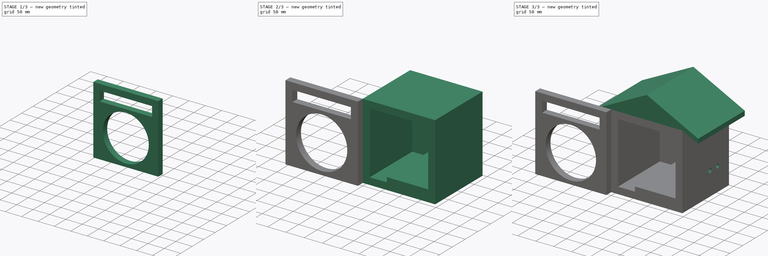
[diagram: build sequence overview — one tinted view per stage of 3, left to right]
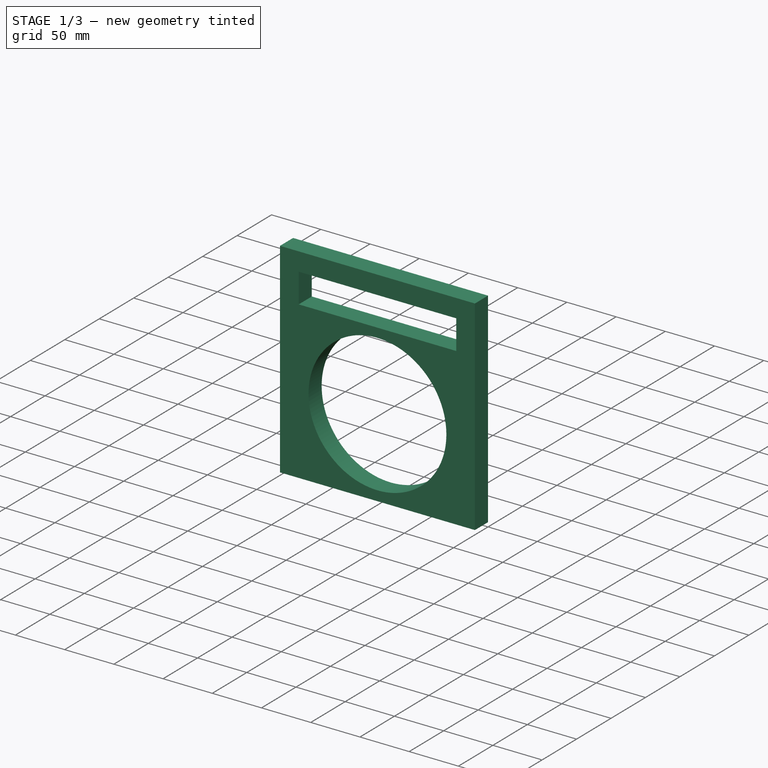
[diagram: stage 1 of 3 — iso view after this stage's code; geometry added in this stage tinted green]
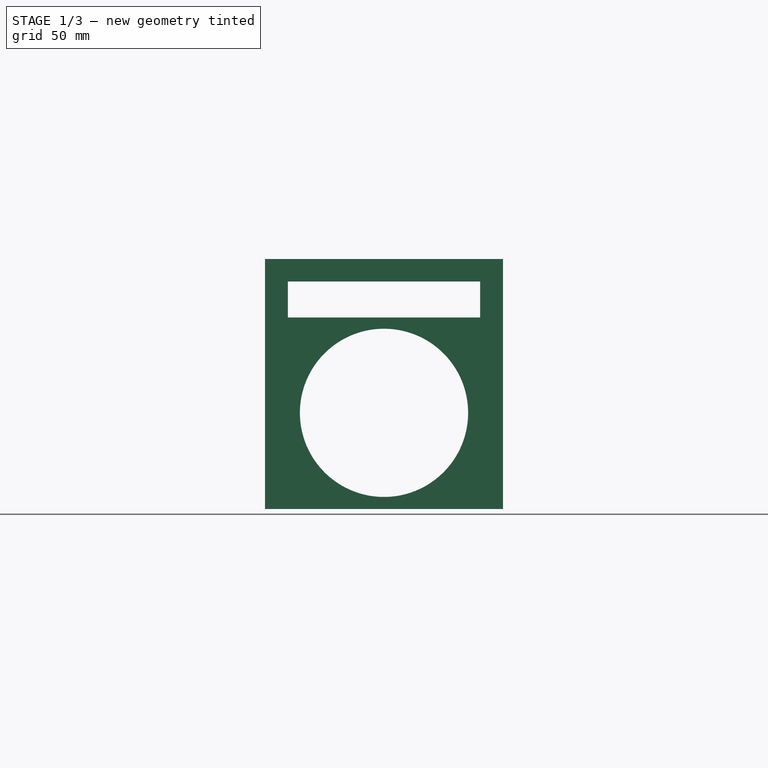
[diagram: stage 1 of 3 — front view after this stage's code; geometry added in this stage tinted green]
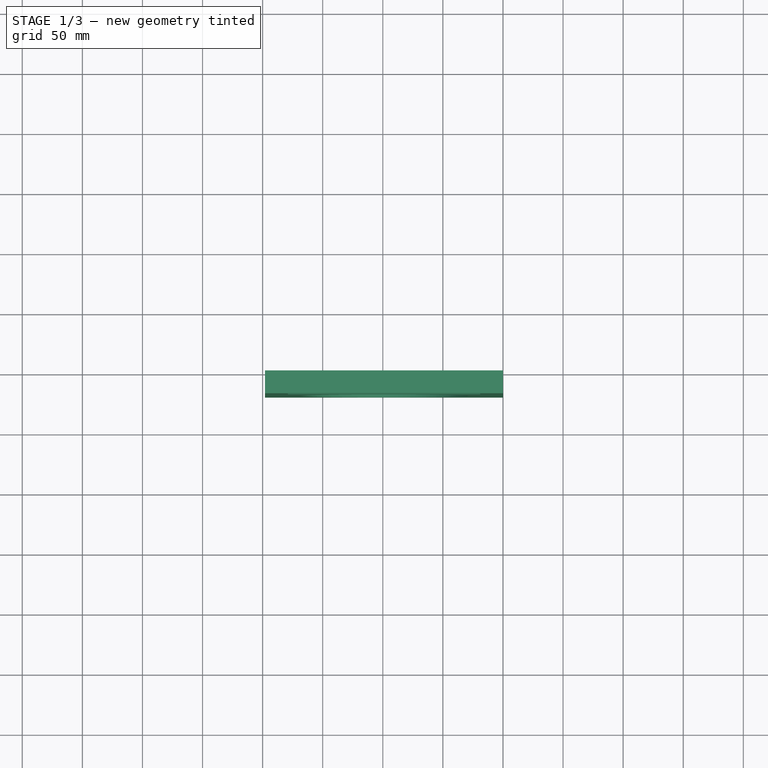
[diagram: stage 1 of 3 — top view after this stage's code; geometry added in this stage tinted green]
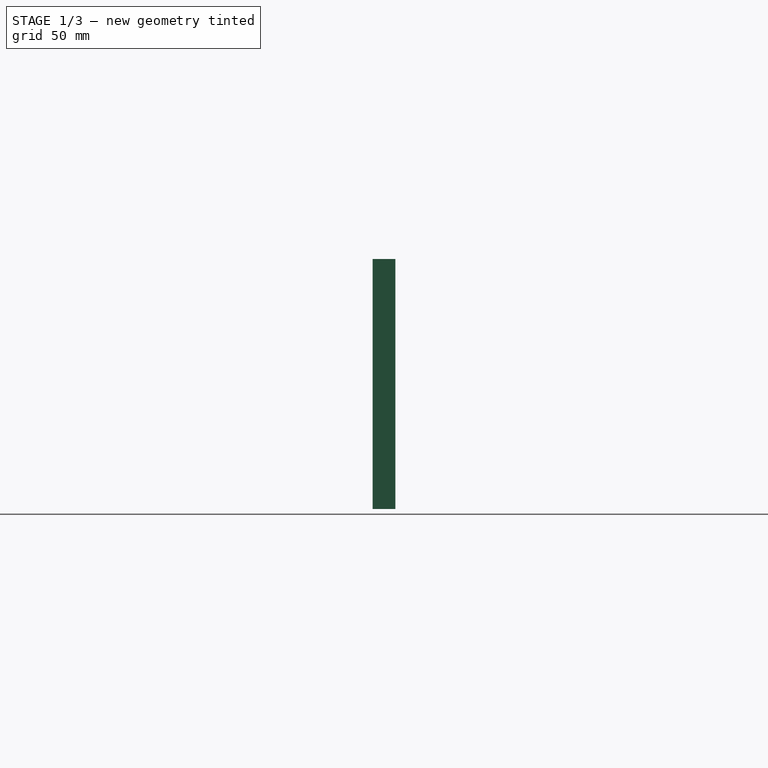
[diagram: stage 1 of 3 — right view after this stage's code; geometry added in this stage tinted green]
FCSTD DOCUMENT  (FreeCAD 0.16R6712 (Git))
Label: DSLR_Enclosure03
License: All rights reserved
LicenseURL: http://en.wikipedia.org/wiki/All_rights_reserved
objects: Drawing::FeatureViewPython×22, Drawing::FeatureViewPart×6, Sketcher::SketchObject×4, PartDesign::Pocket×3, Part::Box×2, PartDesign::Pad×1, Drawing::FeaturePage×1
note: 14 computed .brp shape members not serialized (recipe doc carries the construction recipe); baked Part::Feature solids carry a one-line shape summary decoded from their .brp

FEATURE [Sketcher::SketchObject] Sketch
  Placement = pos=(0,0,0) rot=(1,0,0;1.5708rad)
  Support = -> Box [Face3]
  sketch-geometry (6):
    g0: LineSegment StartX=19 StartY=19 StartZ=0 EndX=19 EndY=189 EndZ=0
    g1: LineSegment StartX=19 StartY=189 StartZ=0 EndX=179 EndY=189 EndZ=0
    g2: LineSegment StartX=66 StartY=32 StartZ=0 EndX=179 EndY=32 EndZ=0
    g3: LineSegment StartX=66 StartY=19 StartZ=0 EndX=66 EndY=32 EndZ=0
    g4: LineSegment StartX=19 StartY=19 StartZ=0 EndX=66 EndY=19 EndZ=0
    g5: LineSegment StartX=179 StartY=32 StartZ=0 EndX=179 EndY=189 EndZ=0
  constraints (18):
    c: Coincident(g0,g1)
    c: Horizontal(g1)
    c: Vertical(g0)
    c: Coincident(g3,g2)
    c: Horizontal(g2)
    c: Vertical(g3)
    c: Coincident(g4,g0)
    c: Horizontal(g4)
    c: Coincident(g5,g2)
    c: Coincident(g5,g1)
    c: Vertical(g5)
    c: DistanceY(g-1,g0) = 19
    c: DistanceY(g-1,g2) = 32
    c: DistanceX(g-1,g0) = 19
    c: DistanceX(g-1,g2) = 179
    c: Coincident(g3,g4)
    c: Distance(g4) = 47
    c: DistanceY(g-1,g0) = 189
FEATURE [Part::Box] Box001  label="Cube001"
  Height = 208
  Length = 198
  Placement = pos=(0,0,0) rot=(0,0,1;3.14159rad)
  Width = 19
FEATURE [PartDesign::Pocket] Pocket003
  Length = 19
  Placement = pos=(0,0,0) rot=(0,0,1;3.14159rad)
  Sketch = -> Sketch004
  Type = 0
FEATURE [Drawing::FeatureViewPart] Ortho  label="RightSide"
  Direction = (1,0,0)
  HiddenWidth = 0.15
  LineWidth = 0.35
  Rotation = -90
  Scale = 0.25
  ShowHiddenLines = false
  ShowSmoothLines = false
  Source = -> Pad
  Tolerance = 0.05
  ViewResult = <g id="RightSide"\n   transform="rotate(-90,150,150) translate(150,150) scale(0.25,0.25)"\n  >\n<g   stroke="rgb(0, 0, 0)"\n   stroke-width="1.4"\n   stroke-linecap="butt"\n   stroke-linejoin="miter"\n   fill="none"\n   transform="scale(1,-1)"\n  >\n<path id= "1" d=" M 0 0 L 0 -185 " />\n<path id= "2" d=" M 0 -185 L 186 -185 " />\n<path id= "3" d=" M 0 0 L 208 0 " />\n<circle cx ="65" cy ="-110.26" r ="6" /><circle cx ="65" cy ="-140.26" r ="6" /><path id= "6" d=" M 271 -185 L 199 -185 " />\n<path id= "7" d=" M 199 -185 L 186 -185 " />\n<path id= "8" d=" M 186 -4.13003e-014 L 186 -185 " />\n<path id= "9" d=" M 271 -6.01741e-014 L 199 -4.41869e-014 " />\n<path id= "10" d=" M 199 -4.41869e-014 L 186 -4.13003e-014 " />\n<path id= "11" d=" M 271 -6.01741e-014 L 271 -185 " />\n<path id= "12" d=" M 199 -4.41869e-014 L 199 -185 " />\n</g>\n</g>
  Visible = true
  X = 150
  Y = 150
FEATURE [Drawing::FeatureViewPart] Ortho001  label="TopView"
  Direction = (0,0,1)
  HiddenWidth = 0.15
  LineWidth = 0.35
  Rotation = 90
  Scale = 0.25
  ShowHiddenLines = false
  ShowSmoothLines = false
  Source = -> Pad
  Tolerance = 0.05
  ViewResult = <g id="Ortho_0_1"\n   transform="rotate(90,50,120) translate(50,120) scale(0.25,0.25)"\n  >\n<g   stroke="rgb(0, 0, 0)"\n   stroke-width="1.4"\n   stroke-linecap="butt"\n   stroke-linejoin="miter"\n   fill="none"\n   transform="scale(1,-1)"\n  >\n<path id= "1" d=" M 19 4.21885e-015 L 66 4.21885e-015 " />\n<path id= "2" d=" M 66 7.10543e-015 L 179 7.10543e-015 " />\n<path id= "3" d=" M -43.8846 185 L 99 185 " />\n<path id= "4" d=" M 99 185 L 241.885 185 " />\n<path id= "5" d=" M -43.8846 4.41869e-014 L 99 6.01741e-014 " />\n<path id= "6" d=" M 99 6.01741e-014 L 241.885 4.41869e-014 " />\n<path id= "7" d=" M -43.8846 4.41869e-014 L -43.8846 185 " />\n<path id= "8" d=" M 99 6.01741e-014 L 99 185 " />\n<path id= "9" d=" M 241.885 4.41869e-014 L 241.885 185 " />\n</g>\n</g>
  Visible = true
  X = 50
  Y = 120
FEATURE [Drawing::FeatureViewPart] Ortho002  label="3DView"
  Direction = (0.57735,-0.57735,0.57735)
  HiddenWidth = 0.15
  LineWidth = 0.35
  Rotation = 60
  Scale = 0.15
  ShowHiddenLines = false
  ShowSmoothLines = false
  Source = -> Pad
  Tolerance = 0.05
  ViewResult = <blob: 2220 chars omitted>
  Visible = true
  X = 230
  Y = 50
FEATURE [Drawing::FeatureViewPart] Ortho003  label="FrontView"
  Direction = (0,-1,0)
  HiddenWidth = 0.15
  LineWidth = 0.35
  Rotation = 90
  Scale = 0.25
  ShowHiddenLines = false
  ShowSmoothLines = false
  Source = -> Pad
  Tolerance = 0.05
  ViewResult = <g id="FrontView"\n   transform="rotate(90,50,80) translate(50,80) scale(0.25,0.25)"\n  >\n<g   stroke="rgb(0, 0, 0)"\n   stroke-width="1.4"\n   stroke-linecap="butt"\n   stroke-linejoin="miter"\n   fill="none"\n   transform="scale(1,-1)"\n  >\n<path id= "1" d=" M 0 0 L 0 198 " />\n<path id= "2" d=" M 0 0 L -208 0 " />\n<path id= "3" d=" M 0 198 L -208 198 " />\n<path id= "4" d=" M -208 0 L -208 198 " />\n<path id= "5" d=" M -19 19 L -189 19 " />\n<path id= "6" d=" M -19 19 L -19 66 " />\n<path id= "7" d=" M -189 19 L -189 179 " />\n<path id= "8" d=" M -19 66 L -32 66 " />\n<path id= "9" d=" M -32 179 L -189 179 " />\n<path id= "10" d=" M -32 66 L -32 179 " />\n<path id= "11" d=" M -186 -43.8846 L -208 3.55271e-014 " />\n<path id= "12" d=" M -208 198 L -186 241.885 " />\n<path id= "13" d=" M -186 -43.8846 L -199 -43.8846 " />\n<path id= "14" d=" M -199 -43.8846 L -271 99 " />\n<path id= "15" d=" M -271 99 L -199 241.885 " />\n<path id= "16" d=" M -199 241.885 L -186 241.885 " />\n<path id= "17" d=" M -189 19 L -189 179 " />\n</g>\n</g>
  Visible = true
  X = 50
  Y = 80
FEATURE [Drawing::FeatureViewPart] Ortho004  label="BackView"
  Direction = (0,1,0)
  HiddenWidth = 0.15
  LineWidth = 0.35
  Rotation = -90
  Scale = 0.25
  ShowHiddenLines = false
  ShowSmoothLines = false
  Source = -> Pad
  Tolerance = 0.05
  ViewResult = <g id="BackView"\n   transform="rotate(-90,270,150) translate(270,150) scale(0.25,0.25)"\n  >\n<g   stroke="rgb(0, 0, 0)"\n   stroke-width="1.4"\n   stroke-linecap="butt"\n   stroke-linejoin="miter"\n   fill="none"\n   transform="scale(1,-1)"\n  >\n<path id= "1" d=" M 0 0 L 0 198 " />\n<path id= "2" d=" M 0 0 L 208 0 " />\n<path id= "3" d=" M 0 198 L 208 198 " />\n<path id= "4" d=" M 208 0 L 208 198 " />\n<path id= "5" d=" M 186 -43.8846 L 208 3.55271e-014 " />\n<path id= "6" d=" M 186 -43.8846 L 199 -43.8846 " />\n<path id= "7" d=" M 199 -43.8846 L 271 99 " />\n<path id= "8" d=" M 208 198 L 186 241.885 " />\n<path id= "9" d=" M 271 99 L 199 241.885 " />\n<path id= "10" d=" M 199 241.885 L 186 241.885 " />\n</g>\n</g>
  Visible = true
  X = 270
  Y = 150
FEATURE [Drawing::FeatureViewPython] dim001  # drawing view (typed FeaturePython)
  Rotation = 0
  ViewResult = <g> \n  <line x1="50.000000" y1="82.000000" x2="50.000000" y2="91.000000" style="stroke:rgb(0,0,255);stroke-width:0.50" />\n<line x1="99.500000" y1="82.000000" x2="99.500000" y2="91.000000" style="stroke:rgb(0,0,255);stroke-width:0.50" />\n<line x1="50.000000" y1="90.000000" x2="99.500000" y2="90.000000" style="stroke:rgb(0,0,255);stroke-width:0.50" /> \n  <polygon points="99.500000,90.000000 96.500000,89.000000 95.500000,90.000000 96.500000,91.000000" style="fill:rgb(0,0,255);stroke:rgb(0,0,255);stroke-width:0" /><polygon points="50.000000,90.000000 53.000000,91.000000 54.000000,90.000000 53.000000,89.000000" style="fill:rgb(0,0,255);stroke:rgb(0,0,255);stroke-width:0" /> \n  <text x="74.750000" y="88.000000" font-family="inherit" font-size="3.6" fill="rgb(0,0,255)" text-anchor="middle" transform="rotate(0.000000 74.750000,88.000000)" >198</text> </g>
  Visible = true
  X = 0
  Y = 0
  arrowL1 = 3
  arrowL2 = 1
  arrowW = 2
  arrow_scheme = 0
  autoPlaceOffset = 2
  autoPlaceText = true
  click1_x = 95
  click1_y = 90
  click2_x = 95
  click2_y = 90
  comma_decimal_place = false
  dimension_line_overshoot = 1
  gap_datum_points = 2
  halfDimension_linear = false
  lineColor = rgb(0,0,255)
  strokeWidth = 0.5
  textFormat_linear = %(value)3.3f
  textRenderer_color = rgb(0,0,255)
  textRenderer_family = inherit
  textRenderer_size = 3.6
  unit_custom_scale = 1
  unit_scheme = 0
FEATURE [Drawing::FeatureViewPython] dim002  # drawing view (typed FeaturePython)
  Rotation = 0
  ViewResult = <g> \n  <line x1="101.500000" y1="28.000000" x2="121.000000" y2="28.000000" style="stroke:rgb(0,0,255);stroke-width:0.50" />\n<line x1="101.500000" y1="80.000000" x2="121.000000" y2="80.000000" style="stroke:rgb(0,0,255);stroke-width:0.50" />\n<line x1="120.000000" y1="28.000000" x2="120.000000" y2="80.000000" style="stroke:rgb(0,0,255);stroke-width:0.50" /> \n  <polygon points="120.000000,80.000000 121.000000,77.000000 120.000000,76.000000 119.000000,77.000000" style="fill:rgb(0,0,255);stroke:rgb(0,0,255);stroke-width:0" /><polygon points="120.000000,28.000000 119.000000,31.000000 120.000000,32.000000 121.000000,31.000000" style="fill:rgb(0,0,255);stroke:rgb(0,0,255);stroke-width:0" /> \n  <text x="118.000000" y="54.000000" font-family="inherit" font-size="3.6" fill="rgb(0,0,255)" text-anchor="middle" transform="rotate(-90.000000 118.000000,54.000000)" >208</text> </g>
  Visible = true
  X = 0
  Y = 0
  arrowL1 = 3
  arrowL2 = 1
  arrowW = 2
  arrow_scheme = 0
  autoPlaceOffset = 2
  autoPlaceText = true
  click1_x = 120
  click1_y = 75
  click2_x = 120
  click2_y = 75
  comma_decimal_place = false
  dimension_line_overshoot = 1
  gap_datum_points = 2
  halfDimension_linear = false
  lineColor = rgb(0,0,255)
  strokeWidth = 0.5
  textFormat_linear = %(value)3.3f
  textRenderer_color = rgb(0,0,255)
  textRenderer_family = inherit
  textRenderer_size = 3.6
  unit_custom_scale = 1
  unit_scheme = 0
FEATURE [Drawing::FeatureViewPython] dim005  # drawing view (typed FeaturePython)
  Rotation = 0
  ViewResult = <g> \n  <line x1="54.750000" y1="34.750000" x2="54.750000" y2="41.000000" style="stroke:rgb(0,0,255);stroke-width:0.50" />\n<line x1="94.750000" y1="34.750000" x2="94.750000" y2="41.000000" style="stroke:rgb(0,0,255);stroke-width:0.50" />\n<line x1="54.750000" y1="40.000000" x2="94.750000" y2="40.000000" style="stroke:rgb(0,0,255);stroke-width:0.50" /> \n  <polygon points="94.750000,40.000000 91.750000,39.000000 90.750000,40.000000 91.750000,41.000000" style="fill:rgb(0,0,255);stroke:rgb(0,0,255);stroke-width:0" /><polygon points="54.750000,40.000000 57.750000,41.000000 58.750000,40.000000 57.750000,39.000000" style="fill:rgb(0,0,255);stroke:rgb(0,0,255);stroke-width:0" /> \n  <text x="74.750000" y="38.000000" font-family="inherit" font-size="3.6" fill="rgb(0,0,255)" text-anchor="middle" transform="rotate(0.000000 74.750000,38.000000)" >160</text> </g>
  Visible = true
  X = 0
  Y = 0
  arrowL1 = 3
  arrowL2 = 1
  arrowW = 2
  arrow_scheme = 0
  autoPlaceOffset = 2
  autoPlaceText = true
  click1_x = 90
  click1_y = 40
  click2_x = 90
  click2_y = 40
  comma_decimal_place = false
  dimension_line_overshoot = 1
  gap_datum_points = 2
  halfDimension_linear = false
  lineColor = rgb(0,0,255)
  strokeWidth = 0.5
  textFormat_linear = %(value)3.3f
  textRenderer_color = rgb(0,0,255)
  textRenderer_family = inherit
  textRenderer_size = 3.6
  unit_custom_scale = 1
  unit_scheme = 0
FEATURE [Drawing::FeatureViewPython] dim006  # drawing view (typed FeaturePython)
  Rotation = 0
  ViewResult = <g> \n  <line x1="48.000000" y1="109.028850" x2="29.000000" y2="109.028850" style="stroke:rgb(0,0,255);stroke-width:0.50" />\n<line x1="48.000000" y1="180.471250" x2="29.000000" y2="180.471250" style="stroke:rgb(0,0,255);stroke-width:0.50" />\n<line x1="30.000000" y1="109.028850" x2="30.000000" y2="180.471250" style="stroke:rgb(0,0,255);stroke-width:0.50" /> \n  <polygon points="30.000000,180.471250 31.000000,177.471250 30.000000,176.471250 29.000000,177.471250" style="fill:rgb(0,0,255);stroke:rgb(0,0,255);stroke-width:0" /><polygon points="30.000000,109.028850 29.000000,112.028850 30.000000,113.028850 31.000000,112.028850" style="fill:rgb(0,0,255);stroke:rgb(0,0,255);stroke-width:0" /> \n  <text x="28.000000" y="144.750050" font-family="inherit" font-size="3.6" fill="rgb(0,0,255)" text-anchor="middle" transform="rotate(-90.000000 28.000000,144.750050)" >285.77</text> </g>
  Visible = true
  X = 0
  Y = 0
  arrowL1 = 3
  arrowL2 = 1
  arrowW = 2
  arrow_scheme = 0
  autoPlaceOffset = 2
  autoPlaceText = true
  click1_x = 30
  click1_y = 175
  click2_x = 30
  click2_y = 175
  comma_decimal_place = false
  dimension_line_overshoot = 1
  gap_datum_points = 2
  halfDimension_linear = false
  lineColor = rgb(0,0,255)
  strokeWidth = 0.5
  textFormat_linear = %(value)3.3f
  textRenderer_color = rgb(0,0,255)
  textRenderer_family = inherit
  textRenderer_size = 3.6
  unit_custom_scale = 1
  unit_scheme = 0
FEATURE [Drawing::FeatureViewPython] dim007  # drawing view (typed FeaturePython)
  Rotation = 0
  ViewResult = <g> \n  <line x1="48.000000" y1="124.750000" x2="39.000000" y2="124.750000" style="stroke:rgb(0,0,255);stroke-width:0.50" />\n<line x1="48.000000" y1="164.750000" x2="39.000000" y2="164.750000" style="stroke:rgb(0,0,255);stroke-width:0.50" />\n<line x1="40.000000" y1="124.750000" x2="40.000000" y2="164.750000" style="stroke:rgb(0,0,255);stroke-width:0.50" /> \n  <polygon points="40.000000,164.750000 41.000000,161.750000 40.000000,160.750000 39.000000,161.750000" style="fill:rgb(0,0,255);stroke:rgb(0,0,255);stroke-width:0" /><polygon points="40.000000,124.750000 39.000000,127.750000 40.000000,128.750000 41.000000,127.750000" style="fill:rgb(0,0,255);stroke:rgb(0,0,255);stroke-width:0" /> \n  <text x="38.000000" y="144.750000" font-family="inherit" font-size="3.6" fill="rgb(0,0,255)" text-anchor="middle" transform="rotate(-90.000000 38.000000,144.750000)" >160</text> </g>
  Visible = true
  X = 0
  Y = 0
  arrowL1 = 3
  arrowL2 = 1
  arrowW = 2
  arrow_scheme = 0
  autoPlaceOffset = 2
  autoPlaceText = true
  click1_x = 40
  click1_y = 165
  click2_x = 40
  click2_y = 165
  comma_decimal_place = false
  dimension_line_overshoot = 1
  gap_datum_points = 2
  halfDimension_linear = false
  lineColor = rgb(0,0,255)
  strokeWidth = 0.5
  textFormat_linear = %(value)3.3f
  textRenderer_color = rgb(0,0,255)
  textRenderer_family = inherit
  textRenderer_size = 3.6
  unit_custom_scale = 1
  unit_scheme = 0
FEATURE [Drawing::FeatureViewPython] dim008  # drawing view (typed FeaturePython)
  Rotation = 0
  ViewResult = <g> \n  <line x1="50.000000" y1="107.028850" x2="50.000000" y2="99.000000" style="stroke:rgb(0,0,255);stroke-width:0.50" />\n<line x1="96.250000" y1="107.028850" x2="96.250000" y2="99.000000" style="stroke:rgb(0,0,255);stroke-width:0.50" />\n<line x1="50.000000" y1="100.000000" x2="96.250000" y2="100.000000" style="stroke:rgb(0,0,255);stroke-width:0.50" /> \n  <polygon points="96.250000,100.000000 93.250000,99.000000 92.250000,100.000000 93.250000,101.000000" style="fill:rgb(0,0,255);stroke:rgb(0,0,255);stroke-width:0" /><polygon points="50.000000,100.000000 53.000000,101.000000 54.000000,100.000000 53.000000,99.000000" style="fill:rgb(0,0,255);stroke:rgb(0,0,255);stroke-width:0" /> \n  <text x="73.125000" y="98.000000" font-family="inherit" font-size="3.6" fill="rgb(0,0,255)" text-anchor="middle" transform="rotate(0.000000 73.125000,98.000000)" >185</text> </g>
  Visible = true
  X = 0
  Y = 0
  arrowL1 = 3
  arrowL2 = 1
  arrowW = 2
  arrow_scheme = 0
  autoPlaceOffset = 2
  autoPlaceText = true
  click1_x = 90
  click1_y = 100
  click2_x = 90
  click2_y = 100
  comma_decimal_place = false
  dimension_line_overshoot = 1
  gap_datum_points = 2
  halfDimension_linear = false
  lineColor = rgb(0,0,255)
  strokeWidth = 0.5
  textFormat_linear = %(value)3.3f
  textRenderer_color = rgb(0,0,255)
  textRenderer_family = inherit
  textRenderer_size = 3.6
  unit_custom_scale = 1
  unit_scheme = 0
FEATURE [Drawing::FeatureViewPython] dim009  # drawing view (typed FeaturePython)
  Rotation = 0
  ViewResult = <g> \n  <line x1="50.000000" y1="182.471250" x2="50.000000" y2="191.000000" style="stroke:rgb(0,0,255);stroke-width:0.50" />\n<line x1="96.250000" y1="182.471250" x2="96.250000" y2="191.000000" style="stroke:rgb(0,0,255);stroke-width:0.50" />\n<line x1="50.000000" y1="190.000000" x2="96.250000" y2="190.000000" style="stroke:rgb(0,0,255);stroke-width:0.50" /> \n  <polygon points="96.250000,190.000000 93.250000,189.000000 92.250000,190.000000 93.250000,191.000000" style="fill:rgb(0,0,255);stroke:rgb(0,0,255);stroke-width:0" /><polygon points="50.000000,190.000000 53.000000,191.000000 54.000000,190.000000 53.000000,189.000000" style="fill:rgb(0,0,255);stroke:rgb(0,0,255);stroke-width:0" /> \n  <text x="73.125000" y="188.000000" font-family="inherit" font-size="3.6" fill="rgb(0,0,255)" text-anchor="middle" transform="rotate(0.000000 73.125000,188.000000)" >185</text> </g>
  Visible = true
  X = 0
  Y = 0
  arrowL1 = 3
  arrowL2 = 1
  arrowW = 2
  arrow_scheme = 0
  autoPlaceOffset = 2
  autoPlaceText = true
  click1_x = 95
  click1_y = 190
  click2_x = 95
  click2_y = 190
  comma_decimal_place = false
  dimension_line_overshoot = 1
  gap_datum_points = 2
  halfDimension_linear = false
  lineColor = rgb(0,0,255)
  strokeWidth = 0.5
  textFormat_linear = %(value)3.3f
  textRenderer_color = rgb(0,0,255)
  textRenderer_family = inherit
  textRenderer_size = 3.6
  unit_custom_scale = 1
  unit_scheme = 0
FEATURE [Drawing::FeatureViewPython] dim010  # drawing view (typed FeaturePython)
  Rotation = 0
  ViewResult = <g> \n  <line x1="148.000000" y1="103.500000" x2="139.000000" y2="103.500000" style="stroke:rgb(0,0,255);stroke-width:0.50" />\n<line x1="148.000000" y1="150.000000" x2="139.000000" y2="150.000000" style="stroke:rgb(0,0,255);stroke-width:0.50" />\n<line x1="140.000000" y1="103.500000" x2="140.000000" y2="150.000000" style="stroke:rgb(0,0,255);stroke-width:0.50" /> \n  <polygon points="140.000000,150.000000 141.000000,147.000000 140.000000,146.000000 139.000000,147.000000" style="fill:rgb(0,0,255);stroke:rgb(0,0,255);stroke-width:0" /><polygon points="140.000000,103.500000 139.000000,106.500000 140.000000,107.500000 141.000000,106.500000" style="fill:rgb(0,0,255);stroke:rgb(0,0,255);stroke-width:0" /> \n  <text x="138.000000" y="126.750000" font-family="inherit" font-size="3.6" fill="rgb(0,0,255)" text-anchor="middle" transform="rotate(-90.000000 138.000000,126.750000)" >186</text> </g>
  Visible = true
  X = 0
  Y = 0
  arrowL1 = 3
  arrowL2 = 1
  arrowW = 2
  arrow_scheme = 0
  autoPlaceOffset = 2
  autoPlaceText = true
  click1_x = 140
  click1_y = 150
  click2_x = 140
  click2_y = 150
  comma_decimal_place = false
  dimension_line_overshoot = 1
  gap_datum_points = 2
  halfDimension_linear = false
  lineColor = rgb(0,0,255)
  strokeWidth = 0.5
  textFormat_linear = %(value)3.3f
  textRenderer_color = rgb(0,0,255)
  textRenderer_family = inherit
  textRenderer_size = 3.6
  unit_custom_scale = 1
  unit_scheme = 0
FEATURE [Drawing::FeatureViewPython] dim011  # drawing view (typed FeaturePython)
  Rotation = 0
  ViewResult = <g> \n  <line x1="148.000000" y1="100.250000" x2="134.000000" y2="100.250000" style="stroke:rgb(0,0,255);stroke-width:0.50" />\n<line x1="148.000000" y1="103.500000" x2="134.000000" y2="103.500000" style="stroke:rgb(0,0,255);stroke-width:0.50" />\n<line x1="135.000000" y1="100.250000" x2="135.000000" y2="103.500000" style="stroke:rgb(0,0,255);stroke-width:0.50" /> \n  <polygon points="135.000000,103.500000 134.000000,106.500000 135.000000,107.500000 136.000000,106.500000" style="fill:rgb(0,0,255);stroke:rgb(0,0,255);stroke-width:0" /><polygon points="135.000000,100.250000 136.000000,97.250000 135.000000,96.250000 134.000000,97.250000" style="fill:rgb(0,0,255);stroke:rgb(0,0,255);stroke-width:0" /> \n  <text x="133.000000" y="101.875000" font-family="inherit" font-size="3.6" fill="rgb(0,0,255)" text-anchor="middle" transform="rotate(-90.000000 133.000000,101.875000)" >13</text> </g>
  Visible = true
  X = 0
  Y = 0
  arrowL1 = 3
  arrowL2 = 1
  arrowW = 2
  arrow_scheme = 0
  autoPlaceOffset = 2
  autoPlaceText = true
  click1_x = 135
  click1_y = 100
  click2_x = 135
  click2_y = 100
  comma_decimal_place = false
  dimension_line_overshoot = 1
  gap_datum_points = 2
  halfDimension_linear = false
  lineColor = rgb(0,0,255)
  strokeWidth = 0.5
  textFormat_linear = %(value)3.3f
  textRenderer_color = rgb(0,0,255)
  textRenderer_family = inherit
  textRenderer_size = 3.6
  unit_custom_scale = 1
  unit_scheme = 0
FEATURE [Drawing::FeatureViewPython] dim012  # drawing view (typed FeaturePython)
  Rotation = 0
  ViewResult = <g> \n  <line x1="148.000000" y1="98.000000" x2="124.000000" y2="98.000000" style="stroke:rgb(0,0,255);stroke-width:0.50" />\n<line x1="148.000000" y1="150.000000" x2="124.000000" y2="150.000000" style="stroke:rgb(0,0,255);stroke-width:0.50" />\n<line x1="125.000000" y1="98.000000" x2="125.000000" y2="150.000000" style="stroke:rgb(0,0,255);stroke-width:0.50" /> \n  <polygon points="125.000000,150.000000 126.000000,147.000000 125.000000,146.000000 124.000000,147.000000" style="fill:rgb(0,0,255);stroke:rgb(0,0,255);stroke-width:0" /><polygon points="125.000000,98.000000 124.000000,101.000000 125.000000,102.000000 126.000000,101.000000" style="fill:rgb(0,0,255);stroke:rgb(0,0,255);stroke-width:0" /> \n  <text x="123.000000" y="124.000000" font-family="inherit" font-size="3.6" fill="rgb(0,0,255)" text-anchor="middle" transform="rotate(-90.000000 123.000000,124.000000)" >208</text> </g>
  Visible = true
  X = 0
  Y = 0
  arrowL1 = 3
  arrowL2 = 1
  arrowW = 2
  arrow_scheme = 0
  autoPlaceOffset = 2
  autoPlaceText = true
  click1_x = 125
  click1_y = 150
  click2_x = 125
  click2_y = 150
  comma_decimal_place = false
  dimension_line_overshoot = 1
  gap_datum_points = 2
  halfDimension_linear = false
  lineColor = rgb(0,0,255)
  strokeWidth = 0.5
  textFormat_linear = %(value)3.3f
  textRenderer_color = rgb(0,0,255)
  textRenderer_family = inherit
  textRenderer_size = 3.6
  unit_custom_scale = 1
  unit_scheme = 0
FEATURE [Drawing::FeatureViewPython] rad001  # drawing view (typed FeaturePython)
  Rotation = 0
  ViewResult = <g>  <circle cx ="177.565000" cy ="133.750000" r="0.250000" stroke="none" fill="rgb(0,0,255)" /> \n<line x1="170.000000" y1="140.000000" x2="177.565000" y2="133.750000" style="stroke:rgb(0,0,255);stroke-width:0.50" />\n<polygon points="176.408606,134.705381 173.458898,135.845215 173.324890,137.253065 174.732740,137.387073" style="fill:rgb(0,0,255);stroke:rgb(0,0,255);stroke-width:0" />\n<line x1="170.000000" y1="140.000000" x2="165.000000" y2="140.000000" style="stroke:rgb(0,0,255);stroke-width:0.50" />\n<text x="167.500000" y="138.000000" font-family="inherit" font-size="3.6" fill="rgb(0,0,255)" text-anchor="middle" transform="rotate(0.000000 167.500000,138.000000)" >R6</text> </g>
  Visible = true
  X = 0
  Y = 0
  arrowL1 = 3
  arrowL2 = 1
  arrowW = 2
  arrow_scheme = 0
  autoPlaceOffset = 2
  autoPlaceText = true
  centerPointDia = 0.5
  click1_x = 170
  click1_y = 140
  click2_x = 165
  click2_y = 135
  click3_x = 165
  click3_y = 135
  comma_decimal_place = false
  lineColor = rgb(0,0,255)
  strokeWidth = 0.5
  textFormat_radial = R%(value)3.3f
  textRenderer_color = rgb(0,0,255)
  textRenderer_family = inherit
  textRenderer_size = 3.6
  unit_custom_scale = 1
  unit_scheme = 0
FEATURE [Drawing::FeatureViewPython] rad002  # drawing view (typed FeaturePython)
  Rotation = 0
  ViewResult = <g>  <circle cx ="185.065000" cy ="133.750000" r="0.250000" stroke="none" fill="rgb(0,0,255)" /> \n<line x1="180.000000" y1="140.000000" x2="185.065000" y2="133.750000" style="stroke:rgb(0,0,255);stroke-width:0.50" />\n<polygon points="184.120586,134.915368 181.454846,136.616494 181.602148,138.023015 183.008670,137.875713" style="fill:rgb(0,0,255);stroke:rgb(0,0,255);stroke-width:0" />\n<line x1="180.000000" y1="140.000000" x2="175.000000" y2="140.000000" style="stroke:rgb(0,0,255);stroke-width:0.50" />\n<text x="177.500000" y="138.000000" font-family="inherit" font-size="3.6" fill="rgb(0,0,255)" text-anchor="middle" transform="rotate(0.000000 177.500000,138.000000)" >R6</text> </g>
  Visible = true
  X = 0
  Y = 0
  arrowL1 = 3
  arrowL2 = 1
  arrowW = 2
  arrow_scheme = 0
  autoPlaceOffset = 2
  autoPlaceText = true
  centerPointDia = 0.5
  click1_x = 180
  click1_y = 140
  click2_x = 175
  click2_y = 140
  click3_x = 175
  click3_y = 140
  comma_decimal_place = false
  lineColor = rgb(0,0,255)
  strokeWidth = 0.5
  textFormat_radial = R%(value)3.3f
  textRenderer_color = rgb(0,0,255)
  textRenderer_family = inherit
  textRenderer_size = 3.6
  unit_custom_scale = 1
  unit_scheme = 0
FEATURE [Drawing::FeatureViewPython] dim013  # drawing view (typed FeaturePython)
  Rotation = 0
  ViewResult = <g> \n  <line x1="177.565000" y1="131.750000" x2="177.565000" y2="124.000000" style="stroke:rgb(0,0,255);stroke-width:0.50" />\n<line x1="185.065000" y1="131.750000" x2="185.065000" y2="124.000000" style="stroke:rgb(0,0,255);stroke-width:0.50" />\n<line x1="177.565000" y1="125.000000" x2="185.065000" y2="125.000000" style="stroke:rgb(0,0,255);stroke-width:0.50" /> \n  <polygon points="185.065000,125.000000 188.065000,126.000000 189.065000,125.000000 188.065000,124.000000" style="fill:rgb(0,0,255);stroke:rgb(0,0,255);stroke-width:0" /><polygon points="177.565000,125.000000 174.565000,124.000000 173.565000,125.000000 174.565000,126.000000" style="fill:rgb(0,0,255);stroke:rgb(0,0,255);stroke-width:0" /> \n  <text x="181.315000" y="123.000000" font-family="inherit" font-size="3.6" fill="rgb(0,0,255)" text-anchor="middle" transform="rotate(0.000000 181.315000,123.000000)" >30</text> </g>
  Visible = true
  X = 0
  Y = 0
  arrowL1 = 3
  arrowL2 = 1
  arrowW = 2
  arrow_scheme = 0
  autoPlaceOffset = 2
  autoPlaceText = true
  click1_x = 185
  click1_y = 125
  click2_x = 185
  click2_y = 125
  comma_decimal_place = false
  dimension_line_overshoot = 1
  gap_datum_points = 2
  halfDimension_linear = false
  lineColor = rgb(0,0,255)
  strokeWidth = 0.5
  textFormat_linear = %(value)3.3f
  textRenderer_color = rgb(0,0,255)
  textRenderer_family = inherit
  textRenderer_size = 3.6
  unit_custom_scale = 1
  unit_scheme = 0
FEATURE [Drawing::FeatureViewPart] Ortho009  label="Front_Door"
  Direction = (0,-1,0)
  HiddenWidth = 0.15
  LineWidth = 0.35
  Rotation = 90
  Scale = 0.25
  ShowHiddenLines = false
  ShowSmoothLines = false
  Source = -> Pocket003
  Tolerance = 0.05
  ViewResult = <g id="Ortho_-1_0"\n   transform="rotate(90,200,70) translate(200,70) scale(0.25,0.25)"\n  >\n<g   stroke="rgb(0, 0, 0)"\n   stroke-width="1.4"\n   stroke-linecap="butt"\n   stroke-linejoin="miter"\n   fill="none"\n   transform="scale(1,-1)"\n  >\n<path id= "1" d=" M 0 6.08902e-030 L -208 6.08902e-030 " />\n<path id= "2" d=" M -208 6.08902e-030 L -208 -198 " />\n<path id= "3" d=" M 0 6.08902e-030 L 0 -198 " />\n<path id= "4" d=" M 0 -198 L -208 -198 " />\n<circle cx ="-80" cy ="-99" r ="70" /><path id= "6" d=" M -159.338 -179 L -189.338 -179 " />\n<path id= "7" d=" M -159.338 -19 L -159.338 -179 " />\n<path id= "8" d=" M -189.338 -19 L -159.338 -19 " />\n<path id= "9" d=" M -189.338 -179 L -189.338 -19 " />\n</g>\n</g>
  Visible = true
  X = 200
  Y = 70
FEATURE [Drawing::FeatureViewPython] dim014  # drawing view (typed FeaturePython)
  Rotation = 0
  ViewResult = <g> \n  <line x1="150.500000" y1="72.000000" x2="150.500000" y2="76.000000" style="stroke:rgb(0,0,255);stroke-width:0.50" />\n<line x1="200.000000" y1="72.000000" x2="200.000000" y2="76.000000" style="stroke:rgb(0,0,255);stroke-width:0.50" />\n<line x1="150.500000" y1="75.000000" x2="200.000000" y2="75.000000" style="stroke:rgb(0,0,255);stroke-width:0.50" /> \n  <polygon points="200.000000,75.000000 197.000000,74.000000 196.000000,75.000000 197.000000,76.000000" style="fill:rgb(0,0,255);stroke:rgb(0,0,255);stroke-width:0" /><polygon points="150.500000,75.000000 153.500000,76.000000 154.500000,75.000000 153.500000,74.000000" style="fill:rgb(0,0,255);stroke:rgb(0,0,255);stroke-width:0" /> \n  <text x="175.250000" y="73.000000" font-family="inherit" font-size="3.6" fill="rgb(0,0,255)" text-anchor="middle" transform="rotate(0.000000 175.250000,73.000000)" >198</text> </g>
  Visible = true
  X = 0
  Y = 0
  arrowL1 = 3
  arrowL2 = 1
  arrowW = 2
  arrow_scheme = 0
  autoPlaceOffset = 2
  autoPlaceText = true
  click1_x = 200
  click1_y = 75
  click2_x = 200
  click2_y = 75
  comma_decimal_place = false
  dimension_line_overshoot = 1
  gap_datum_points = 2
  halfDimension_linear = false
  lineColor = rgb(0,0,255)
  strokeWidth = 0.5
  textFormat_linear = %(value)3.3f
  textRenderer_color = rgb(0,0,255)
  textRenderer_family = inherit
  textRenderer_size = 3.6
  unit_custom_scale = 1
  unit_scheme = 0
FEATURE [Drawing::FeatureViewPython] dim015  # drawing view (typed FeaturePython)
  Rotation = 0
  ViewResult = <g> \n  <line x1="148.500000" y1="70.000000" x2="139.000000" y2="70.000000" style="stroke:rgb(0,0,255);stroke-width:0.50" />\n<line x1="148.500000" y1="18.000000" x2="139.000000" y2="18.000000" style="stroke:rgb(0,0,255);stroke-width:0.50" />\n<line x1="140.000000" y1="70.000000" x2="140.000000" y2="18.000000" style="stroke:rgb(0,0,255);stroke-width:0.50" /> \n  <polygon points="140.000000,18.000000 139.000000,21.000000 140.000000,22.000000 141.000000,21.000000" style="fill:rgb(0,0,255);stroke:rgb(0,0,255);stroke-width:0" /><polygon points="140.000000,70.000000 141.000000,67.000000 140.000000,66.000000 139.000000,67.000000" style="fill:rgb(0,0,255);stroke:rgb(0,0,255);stroke-width:0" /> \n  <text x="138.000000" y="44.000000" font-family="inherit" font-size="3.6" fill="rgb(0,0,255)" text-anchor="middle" transform="rotate(-90.000000 138.000000,44.000000)" >208</text> </g>
  Visible = true
  X = 0
  Y = 0
  arrowL1 = 3
  arrowL2 = 1
  arrowW = 2
  arrow_scheme = 0
  autoPlaceOffset = 2
  autoPlaceText = true
  click1_x = 140
  click1_y = 15
  click2_x = 140
  click2_y = 15
  comma_decimal_place = false
  dimension_line_overshoot = 1
  gap_datum_points = 2
  halfDimension_linear = false
  lineColor = rgb(0,0,255)
  strokeWidth = 0.5
  textFormat_linear = %(value)3.3f
  textRenderer_color = rgb(0,0,255)
  textRenderer_family = inherit
  textRenderer_size = 3.6
  unit_custom_scale = 1
  unit_scheme = 0
FEATURE [Drawing::FeatureViewPython] dim016  # drawing view (typed FeaturePython)
  Rotation = 0
  ViewResult = <g> \n  <line x1="155.250000" y1="20.665500" x2="155.250000" y2="14.000000" style="stroke:rgb(0,0,255);stroke-width:0.50" />\n<line x1="195.250000" y1="20.665500" x2="195.250000" y2="14.000000" style="stroke:rgb(0,0,255);stroke-width:0.50" />\n<line x1="155.250000" y1="15.000000" x2="195.250000" y2="15.000000" style="stroke:rgb(0,0,255);stroke-width:0.50" /> \n  <polygon points="195.250000,15.000000 192.250000,14.000000 191.250000,15.000000 192.250000,16.000000" style="fill:rgb(0,0,255);stroke:rgb(0,0,255);stroke-width:0" /><polygon points="155.250000,15.000000 158.250000,16.000000 159.250000,15.000000 158.250000,14.000000" style="fill:rgb(0,0,255);stroke:rgb(0,0,255);stroke-width:0" /> \n  <text x="175.250000" y="13.000000" font-family="inherit" font-size="3.6" fill="rgb(0,0,255)" text-anchor="middle" transform="rotate(0.000000 175.250000,13.000000)" >160</text> </g>
  Visible = true
  X = 0
  Y = 0
  arrowL1 = 3
  arrowL2 = 1
  arrowW = 2
  arrow_scheme = 0
  autoPlaceOffset = 2
  autoPlaceText = true
  click1_x = 190
  click1_y = 15
  click2_x = 190
  click2_y = 15
  comma_decimal_place = false
  dimension_line_overshoot = 1
  gap_datum_points = 2
  halfDimension_linear = false
  lineColor = rgb(0,0,255)
  strokeWidth = 0.5
  textFormat_linear = %(value)3.3f
  textRenderer_color = rgb(0,0,255)
  textRenderer_family = inherit
  textRenderer_size = 3.6
  unit_custom_scale = 1
  unit_scheme = 0
FEATURE [Drawing::FeatureViewPython] dim017  # drawing view (typed FeaturePython)
  Rotation = 0
  ViewResult = <g> \n  <line x1="197.250000" y1="22.665500" x2="211.000000" y2="22.665500" style="stroke:rgb(0,0,255);stroke-width:0.50" />\n<line x1="197.250000" y1="30.165500" x2="211.000000" y2="30.165500" style="stroke:rgb(0,0,255);stroke-width:0.50" />\n<line x1="210.000000" y1="22.665500" x2="210.000000" y2="30.165500" style="stroke:rgb(0,0,255);stroke-width:0.50" /> \n  <polygon points="210.000000,30.165500 209.000000,33.165500 210.000000,34.165500 211.000000,33.165500" style="fill:rgb(0,0,255);stroke:rgb(0,0,255);stroke-width:0" /><polygon points="210.000000,22.665500 211.000000,19.665500 210.000000,18.665500 209.000000,19.665500" style="fill:rgb(0,0,255);stroke:rgb(0,0,255);stroke-width:0" /> \n  <text x="208.000000" y="26.415500" font-family="inherit" font-size="3.6" fill="rgb(0,0,255)" text-anchor="middle" transform="rotate(-90.000000 208.000000,26.415500)" >30</text> </g>
  Visible = true
  X = 0
  Y = 0
  arrowL1 = 3
  arrowL2 = 1
  arrowW = 2
  arrow_scheme = 0
  autoPlaceOffset = 2
  autoPlaceText = true
  click1_x = 210
  click1_y = 30
  click2_x = 210
  click2_y = 30
  comma_decimal_place = false
  dimension_line_overshoot = 1
  gap_datum_points = 2
  halfDimension_linear = false
  lineColor = rgb(0,0,255)
  strokeWidth = 0.5
  textFormat_linear = %(value)3.3f
  textRenderer_color = rgb(0,0,255)
  textRenderer_family = inherit
  textRenderer_size = 3.6
  unit_custom_scale = 1
  unit_scheme = 0
FEATURE [Drawing::FeatureViewPython] rad003  # drawing view (typed FeaturePython)
  Rotation = 0
  ViewResult = <g>  <circle cx ="175.250000" cy ="50.000000" r="0.250000" stroke="none" fill="rgb(0,0,255)" /> \n<line x1="195.000000" y1="60.000000" x2="175.250000" y2="50.000000" style="stroke:rgb(0,0,255);stroke-width:0.50" />\n<polygon points="190.862750,57.905190 188.638004,55.657857 187.294122,56.098289 187.734554,57.442172" style="fill:rgb(0,0,255);stroke:rgb(0,0,255);stroke-width:0" />\n<line x1="195.000000" y1="60.000000" x2="215.000000" y2="60.000000" style="stroke:rgb(0,0,255);stroke-width:0.50" />\n<text x="205.000000" y="58.000000" font-family="inherit" font-size="3.6" fill="rgb(0,0,255)" text-anchor="middle" transform="rotate(0.000000 205.000000,58.000000)" >R70</text> </g>
  Visible = true
  X = 0
  Y = 0
  arrowL1 = 3
  arrowL2 = 1
  arrowW = 2
  arrow_scheme = 0
  autoPlaceOffset = 2
  autoPlaceText = true
  centerPointDia = 0.5
  click1_x = 195
  click1_y = 60
  click2_x = 215
  click2_y = 55
  click3_x = 215
  click3_y = 55
  comma_decimal_place = false
  lineColor = rgb(0,0,255)
  strokeWidth = 0.5
  textFormat_radial = R%(value)3.3f
  textRenderer_color = rgb(0,0,255)
  textRenderer_family = inherit
  textRenderer_size = 3.6
  unit_custom_scale = 1
  unit_scheme = 0
FEATURE [Drawing::FeatureViewPython] dim018  # drawing view (typed FeaturePython)
  Rotation = 0
  ViewResult = <g> \n  <line x1="37.028850" y1="30.250000" x2="24.000000" y2="30.250000" style="stroke:rgb(0,0,255);stroke-width:0.50" />\n<line x1="72.750000" y1="12.250000" x2="24.000000" y2="12.250000" style="stroke:rgb(0,0,255);stroke-width:0.50" />\n<line x1="25.000000" y1="30.250000" x2="25.000000" y2="12.250000" style="stroke:rgb(0,0,255);stroke-width:0.50" /> \n  <polygon points="25.000000,12.250000 24.000000,15.250000 25.000000,16.250000 26.000000,15.250000" style="fill:rgb(0,0,255);stroke:rgb(0,0,255);stroke-width:0" /><polygon points="25.000000,30.250000 26.000000,27.250000 25.000000,26.250000 24.000000,27.250000" style="fill:rgb(0,0,255);stroke:rgb(0,0,255);stroke-width:0" /> \n  <text x="23.000000" y="21.250000" font-family="inherit" font-size="3.6" fill="rgb(0,0,255)" text-anchor="middle" transform="rotate(-90.000000 23.000000,21.250000)" >72</text> </g>
  Visible = true
  X = 0
  Y = 0
  arrowL1 = 3
  arrowL2 = 1
  arrowW = 2
  arrow_scheme = 0
  autoPlaceOffset = 2
  autoPlaceText = true
  click1_x = 25
  click1_y = 20
  click2_x = 25
  click2_y = 20
  comma_decimal_place = false
  dimension_line_overshoot = 1
  gap_datum_points = 2
  halfDimension_linear = false
  lineColor = rgb(0,0,255)
  strokeWidth = 0.5
  textFormat_linear = %(value)3.3f
  textRenderer_color = rgb(0,0,255)
  textRenderer_family = inherit
  textRenderer_size = 3.6
  unit_custom_scale = 1
  unit_scheme = 0
FEATURE [Drawing::FeatureViewPython] dim019  # drawing view (typed FeaturePython)
  Rotation = 0
  ViewResult = <g> \n  <line x1="74.750000" y1="10.250000" x2="74.750000" y2="9.000000" style="stroke:rgb(0,0,255);stroke-width:0.50" />\n<line x1="110.471250" y1="28.250000" x2="110.471250" y2="9.000000" style="stroke:rgb(0,0,255);stroke-width:0.50" />\n<line x1="74.750000" y1="10.000000" x2="110.471250" y2="10.000000" style="stroke:rgb(0,0,255);stroke-width:0.50" /> \n  <polygon points="110.471250,10.000000 107.471250,9.000000 106.471250,10.000000 107.471250,11.000000" style="fill:rgb(0,0,255);stroke:rgb(0,0,255);stroke-width:0" /><polygon points="74.750000,10.000000 77.750000,11.000000 78.750000,10.000000 77.750000,9.000000" style="fill:rgb(0,0,255);stroke:rgb(0,0,255);stroke-width:0" /> \n  <text x="92.610625" y="8.000000" font-family="inherit" font-size="3.6" fill="rgb(0,0,255)" text-anchor="middle" transform="rotate(0.000000 92.610625,8.000000)" >142.885</text> </g>
  Visible = true
  X = 0
  Y = 0
  arrowL1 = 3
  arrowL2 = 1
  arrowW = 2
  arrow_scheme = 0
  autoPlaceOffset = 2
  autoPlaceText = true
  click1_x = 90
  click1_y = 10
  click2_x = 90
  click2_y = 10
  comma_decimal_place = false
  dimension_line_overshoot = 1
  gap_datum_points = 2
  halfDimension_linear = false
  lineColor = rgb(0,0,255)
  strokeWidth = 0.5
  textFormat_linear = %(value)3.3f
  textRenderer_color = rgb(0,0,255)
  textRenderer_family = inherit
  textRenderer_size = 3.6
  unit_custom_scale = 1
  unit_scheme = 0
FEATURE [Drawing::FeatureViewPython] dim003  # drawing view (typed FeaturePython)
  Rotation = 0
  ViewResult = <g> \n  <line x1="54.750000" y1="73.250000" x2="54.750000" y2="64.000000" style="stroke:rgb(0,0,255);stroke-width:0.50" />\n<line x1="66.500000" y1="73.250000" x2="66.500000" y2="64.000000" style="stroke:rgb(0,0,255);stroke-width:0.50" />\n<line x1="54.750000" y1="65.000000" x2="66.500000" y2="65.000000" style="stroke:rgb(0,0,255);stroke-width:0.50" /> \n  <polygon points="66.500000,65.000000 63.500000,64.000000 62.500000,65.000000 63.500000,66.000000" style="fill:rgb(0,0,255);stroke:rgb(0,0,255);stroke-width:0" /><polygon points="54.750000,65.000000 57.750000,66.000000 58.750000,65.000000 57.750000,64.000000" style="fill:rgb(0,0,255);stroke:rgb(0,0,255);stroke-width:0" /> \n  <text x="60.625000" y="63.000000" font-family="inherit" font-size="3.6" fill="rgb(0,0,255)" text-anchor="middle" transform="rotate(0.000000 60.625000,63.000000)" >47</text> </g>
  Visible = true
  X = 0
  Y = 0
  arrowL1 = 3
  arrowL2 = 1
  arrowW = 2
  arrow_scheme = 0
  autoPlaceOffset = 2
  autoPlaceText = true
  click1_x = 65
  click1_y = 65
  click2_x = 65
  click2_y = 65
  comma_decimal_place = false
  dimension_line_overshoot = 1
  gap_datum_points = 2
  halfDimension_linear = false
  lineColor = rgb(0,0,255)
  strokeWidth = 0.5
  textFormat_linear = %(value)3.3f
  textRenderer_color = rgb(0,0,255)
  textRenderer_family = inherit
  textRenderer_size = 3.6
  unit_custom_scale = 1
  unit_scheme = 0
FEATURE [Drawing::FeatureViewPython] dim004  # drawing view (typed FeaturePython)
  Rotation = 0
  ViewResult = <g> \n  <line x1="198.250000" y1="150.000000" x2="206.000000" y2="150.000000" style="stroke:rgb(0,0,255);stroke-width:0.50" />\n<line x1="187.065000" y1="133.750000" x2="206.000000" y2="133.750000" style="stroke:rgb(0,0,255);stroke-width:0.50" />\n<line x1="205.000000" y1="150.000000" x2="205.000000" y2="133.750000" style="stroke:rgb(0,0,255);stroke-width:0.50" /> \n  <polygon points="205.000000,133.750000 204.000000,136.750000 205.000000,137.750000 206.000000,136.750000" style="fill:rgb(0,0,255);stroke:rgb(0,0,255);stroke-width:0" /><polygon points="205.000000,150.000000 206.000000,147.000000 205.000000,146.000000 204.000000,147.000000" style="fill:rgb(0,0,255);stroke:rgb(0,0,255);stroke-width:0" /> \n  <text x="203.000000" y="141.875000" font-family="inherit" font-size="3.6" fill="rgb(0,0,255)" text-anchor="middle" transform="rotate(-90.000000 203.000000,141.875000)" >65</text> </g>
  Visible = true
  X = 0
  Y = 0
  arrowL1 = 3
  arrowL2 = 1
  arrowW = 2
  arrow_scheme = 0
  autoPlaceOffset = 2
  autoPlaceText = true
  click1_x = 205
  click1_y = 140
  click2_x = 205
  click2_y = 140
  comma_decimal_place = false
  dimension_line_overshoot = 1
  gap_datum_points = 2
  halfDimension_linear = false
  lineColor = rgb(0,0,255)
  strokeWidth = 0.5
  textFormat_linear = %(value)3.3f
  textRenderer_color = rgb(0,0,255)
  textRenderer_family = inherit
  textRenderer_size = 3.6
  unit_custom_scale = 1
  unit_scheme = 0
FEATURE [Drawing::FeaturePage] Page  label="Enclosure"
  EditableTexts = AUTHOR NAME | DRAWING TITLE | FreeCAD DRAWING | A4 | X / Y | SCALE | PN | DN | DD/MM/YYYY | REV A
  Group = -> [Ortho,Ortho001,Ortho002,Ortho003,Ortho004,dim001,dim002,dim005,dim006,dim007,dim008,dim009,dim010,dim011,dim012,rad001,rad002,dim013,Ortho009,dim014,dim015,dim016,dim017,rad003,dim018,dim019,dim003,dim004]
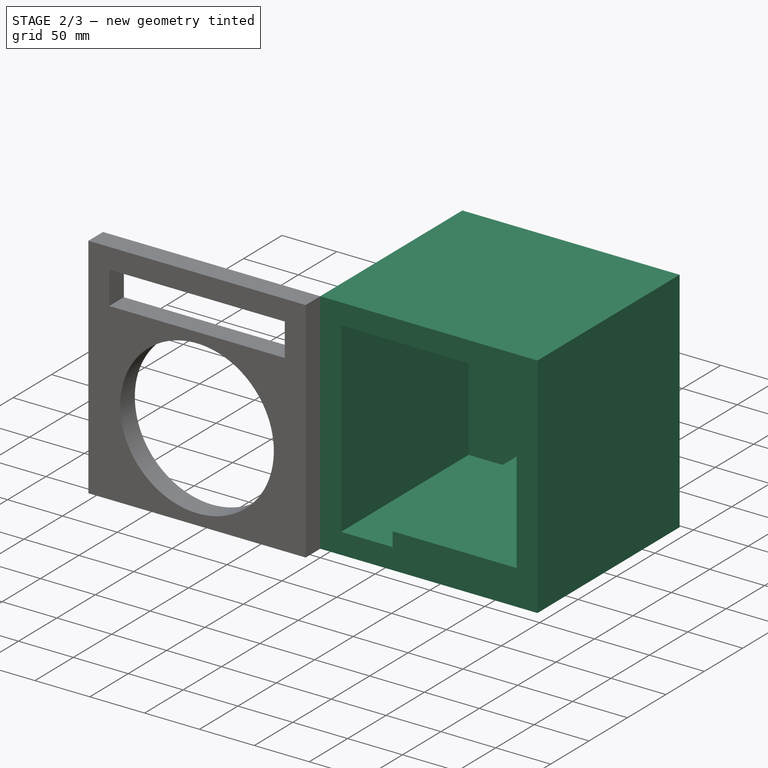
[diagram: stage 2 of 3 — iso view after this stage's code; geometry added in this stage tinted green]
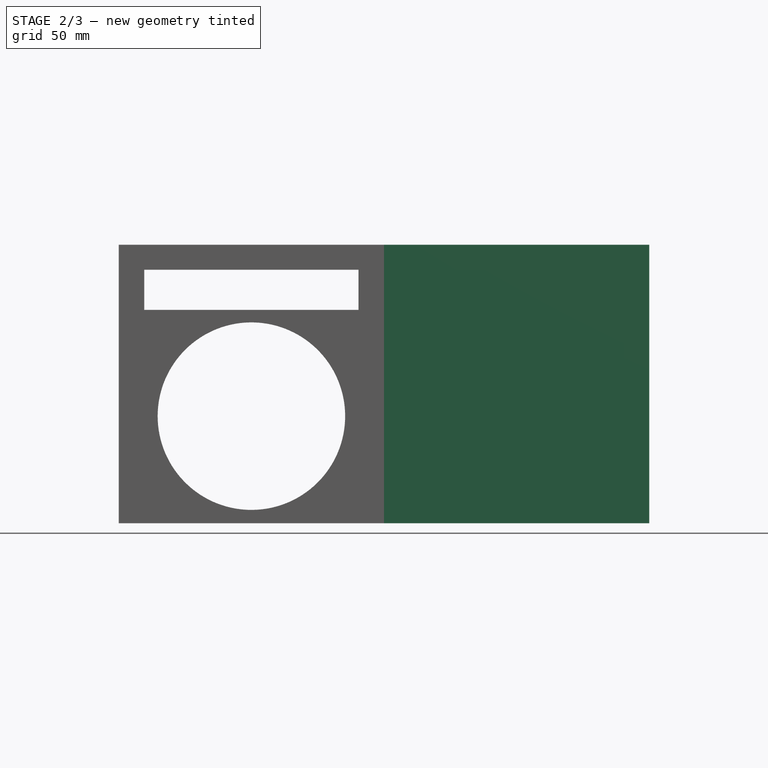
[diagram: stage 2 of 3 — front view after this stage's code; geometry added in this stage tinted green]
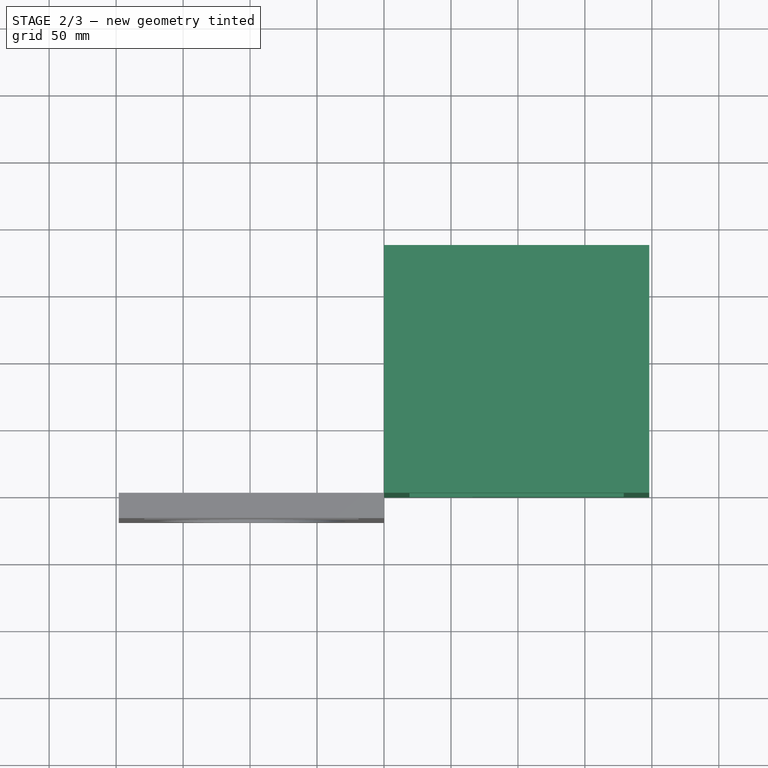
[diagram: stage 2 of 3 — top view after this stage's code; geometry added in this stage tinted green]
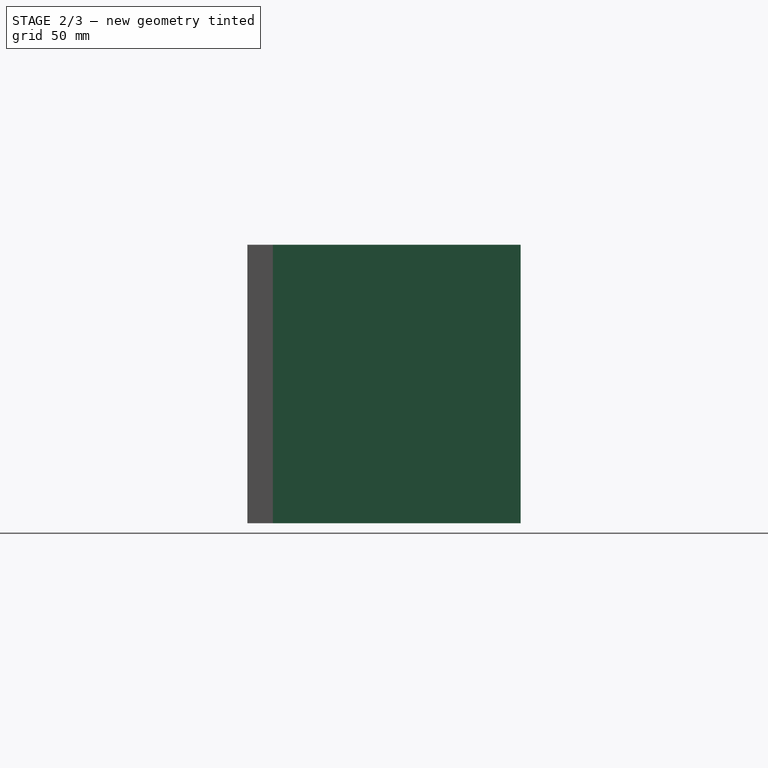
[diagram: stage 2 of 3 — right view after this stage's code; geometry added in this stage tinted green]
FEATURE [Part::Box] Box  label="Cube"
  Height = 208
  Length = 198
  Width = 185
FEATURE [Sketcher::SketchObject] Sketch004
  Placement = pos=(0,-19,0) rot=(1,0,0;1.5708rad)
  Support = -> Box001 [Face4]
  sketch-geometry (5):
    g0: LineSegment StartX=-179 StartY=189.338 StartZ=0 EndX=-19 EndY=189.338 EndZ=0
    g1: LineSegment StartX=-19 StartY=189.338 StartZ=0 EndX=-19 EndY=159.338 EndZ=0
    g2: LineSegment StartX=-19 StartY=159.338 StartZ=0 EndX=-179 EndY=159.338 EndZ=0
    g3: LineSegment StartX=-179 StartY=159.338 StartZ=0 EndX=-179 EndY=189.338 EndZ=0
    g4: Circle CenterX=-99 CenterY=80 CenterZ=0 NormalX=0 NormalY=0 NormalZ=1 Radius=70
  constraints (14):
    c: Coincident(g0,g1)
    c: Coincident(g1,g2)
    c: Coincident(g2,g3)
    c: Coincident(g3,g0)
    c: Horizontal(g0)
    c: Horizontal(g2)
    c: Vertical(g1)
    c: Vertical(g3)
    c: Radius(g4) = 70  'Cam Lens'
    c: DistanceX(g4,g-1) = 99
    c: DistanceY(g-1,g4) = 80
    c: DistanceX(g0,g-1) = 19
    c: Distance(g0) = 160
    c: Distance(g3) = 30
FEATURE [PartDesign::Pocket] Pocket
  Length = 166
  Sketch = -> Sketch
  Type = 0
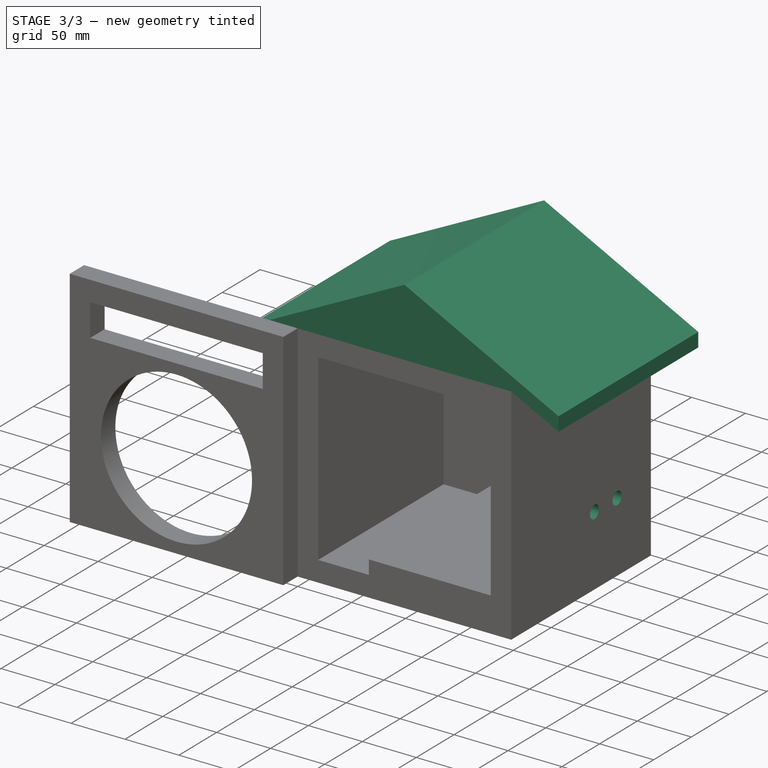
[diagram: stage 3 of 3 — iso view after this stage's code; geometry added in this stage tinted green]
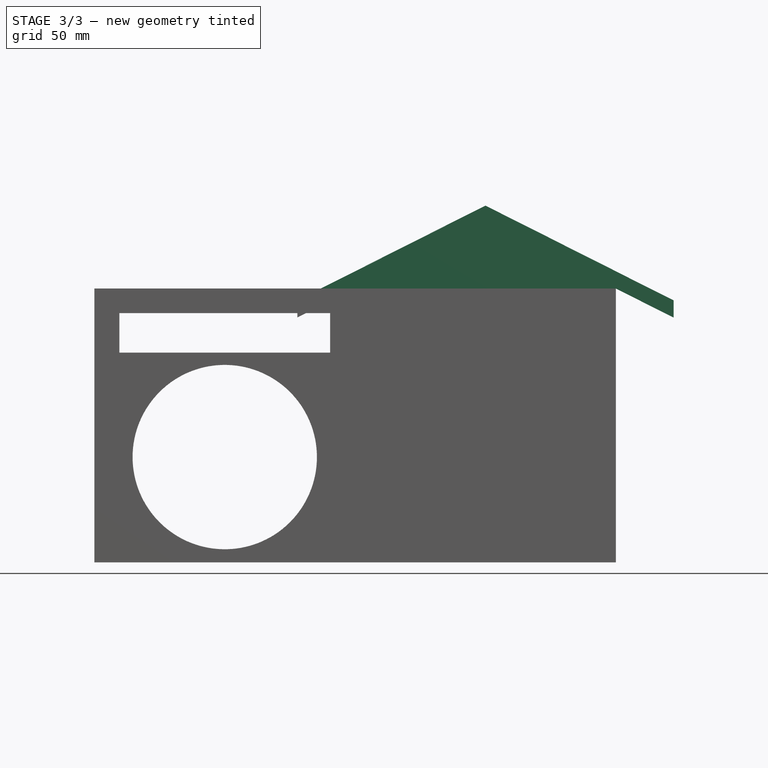
[diagram: stage 3 of 3 — front view after this stage's code; geometry added in this stage tinted green]
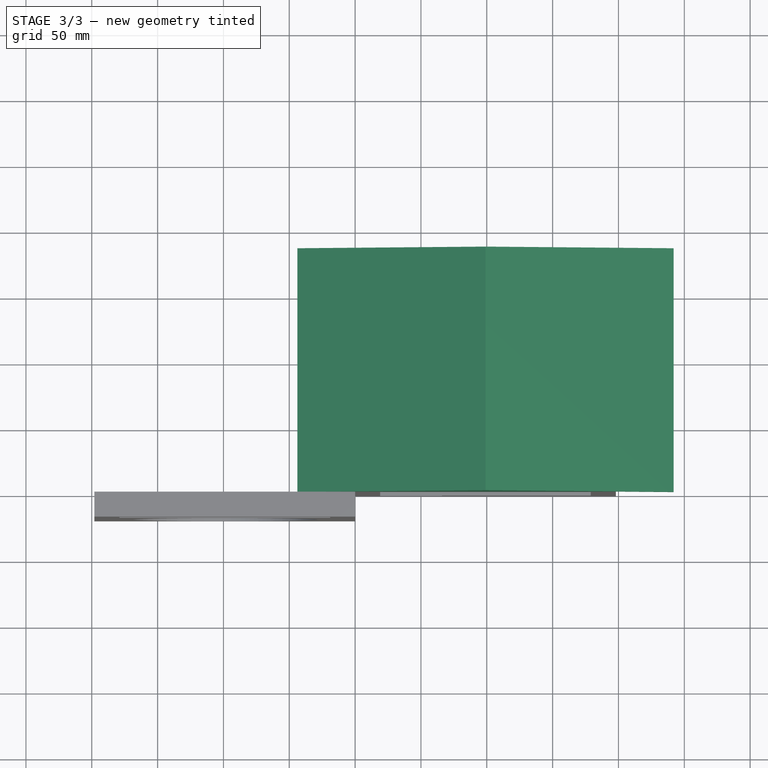
[diagram: stage 3 of 3 — top view after this stage's code; geometry added in this stage tinted green]
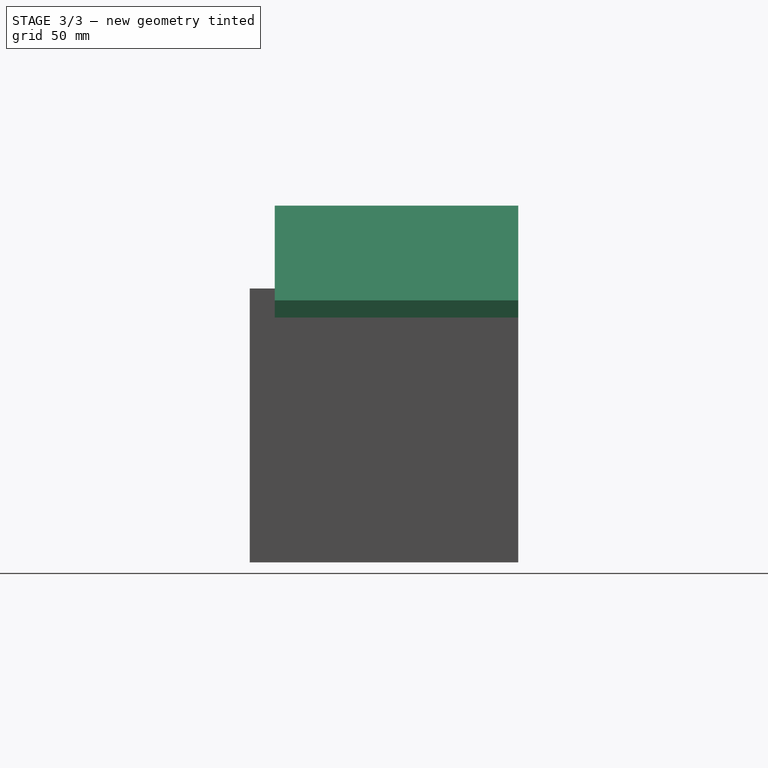
[diagram: stage 3 of 3 — right view after this stage's code; geometry added in this stage tinted green]
FEATURE [Sketcher::SketchObject] Sketch001
  Placement = pos=(198,0,0) rot=(0.57735,0.57735,0.57735;2.0944rad)
  Support = -> Pocket [Face6]
  sketch-geometry (2):
    g0: Circle CenterX=110.26 CenterY=65 CenterZ=0 NormalX=0 NormalY=0 NormalZ=1 Radius=6
    g1: Circle CenterX=140.26 CenterY=65 CenterZ=0 NormalX=0 NormalY=0 NormalZ=1 Radius=6
  constraints (5):
    c: Radius(g0) = 6
    c: Radius(g1) = 6
    c: DistanceX(g0,g1) = 30
    c: DistanceY(g0) = 65
    c: DistanceY(g-1,g1) = 65
FEATURE [PartDesign::Pocket] Pocket004
  Length = 25
  Sketch = -> Sketch001
  Type = 0
FEATURE [Sketcher::SketchObject] Sketch005
  Placement = pos=(0,0,0) rot=(1,0,0;1.5708rad)
  Support = -> Pocket004 [Face2]
  sketch-geometry (7):
    g0: LineSegment StartX=-43.8846 StartY=186 StartZ=0 EndX=-43.8846 EndY=199 EndZ=0
    g1: LineSegment StartX=-43.8846 StartY=199 StartZ=0 EndX=99 EndY=271 EndZ=0
    g2: LineSegment StartX=99 StartY=271 StartZ=0 EndX=241.885 EndY=199 EndZ=0
    g3: LineSegment StartX=241.885 StartY=199 StartZ=0 EndX=241.885 EndY=186 EndZ=0
    g4: LineSegment StartX=0 StartY=208 StartZ=0 EndX=198 EndY=208 EndZ=0
    g5: LineSegment StartX=-43.8846 StartY=186 StartZ=0 EndX=0 EndY=208 EndZ=0
    g6: LineSegment StartX=198 StartY=208 StartZ=0 EndX=241.885 EndY=186 EndZ=0
  constraints (18):
    c: Coincident(g0,g1)
    c: Coincident(g1,g2)
    c: Coincident(g2,g3)
    c: Equal(g0,g3)
    c: Distance(g3) = 13
    c: DistanceX(g-1,g1) = 99
    c: DistanceY(g-1,g0) = 186
    c: DistanceY(g-1,g3) = 186
    c: Equal(g1,g2)
    c: Parallel(g3,g-2)
    c: PointOnObject(g4,g-2)
    c: Horizontal(g4)
    c: DistanceX(g-1,g4) = 198
    c: DistanceY(g-1,g4) = 208
    c: Coincident(g5,g0)
    c: Coincident(g5,g4)
    c: Coincident(g6,g4)
    c: Coincident(g6,g3)
FEATURE [PartDesign::Pad] Pad
  Length = 185
  Length2 = 100
  Reversed = true
  Sketch = -> Sketch005
  Type = 0
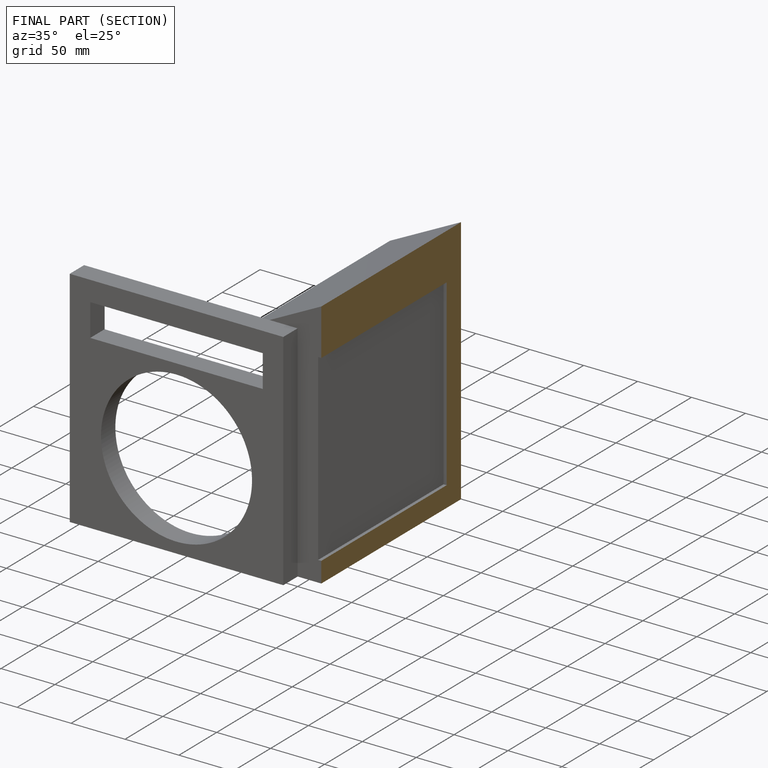
[diagram: finished part — half-section view (interior)]
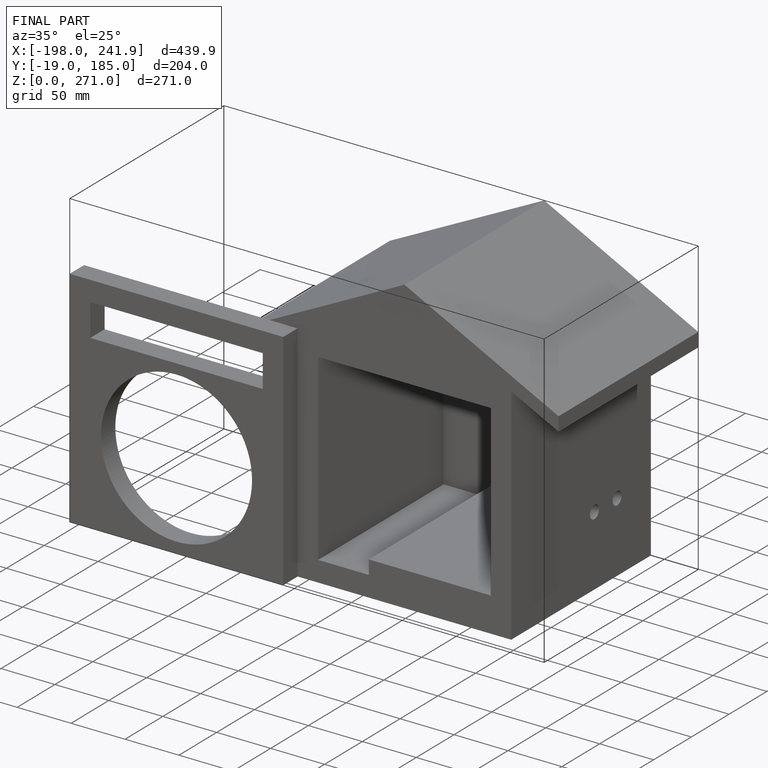
[diagram: finished part — iso view with bounding-box wireframe]
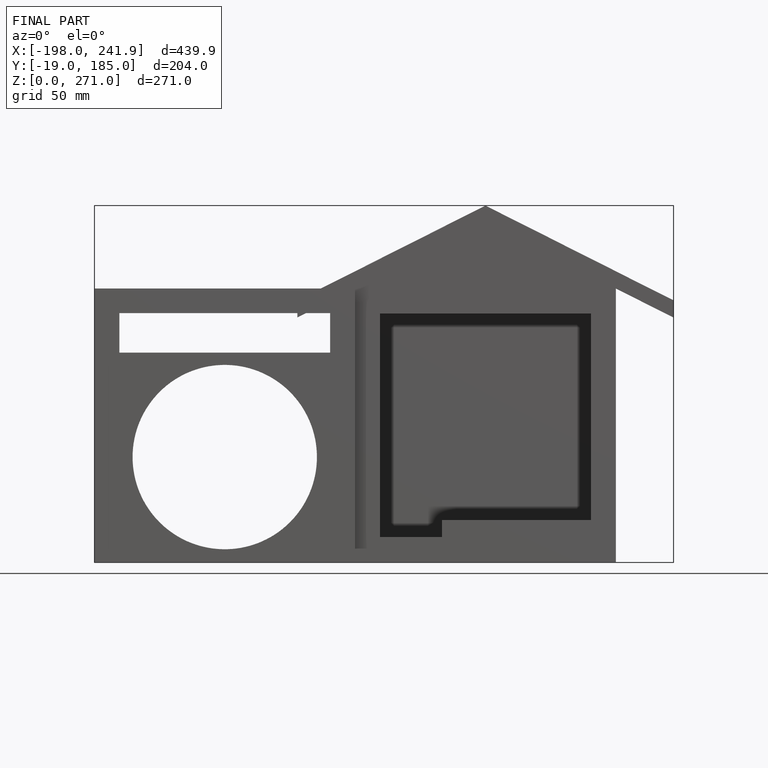
[diagram: finished part — front view with bounding-box wireframe]
